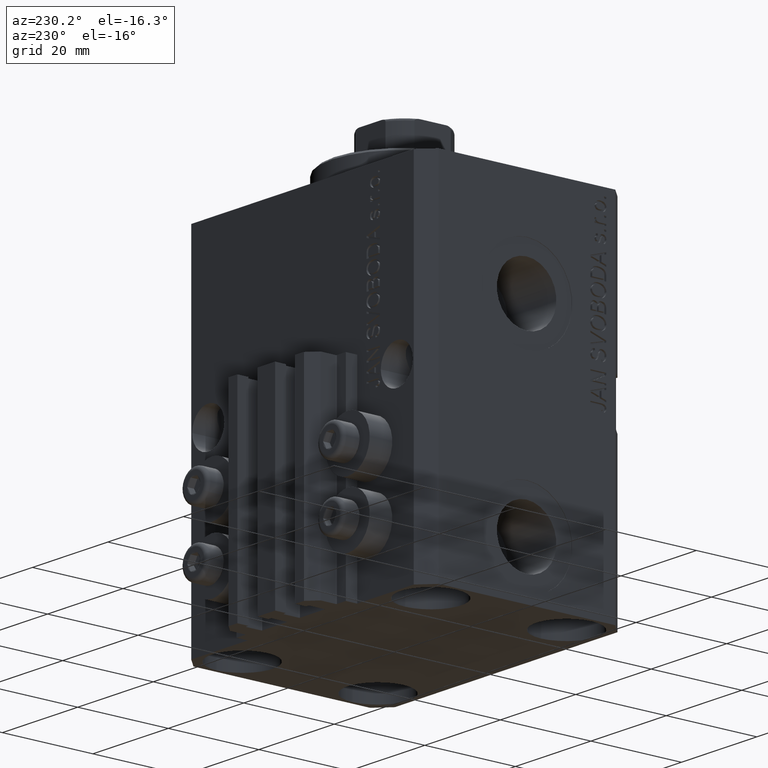
[diagram: clean part render]
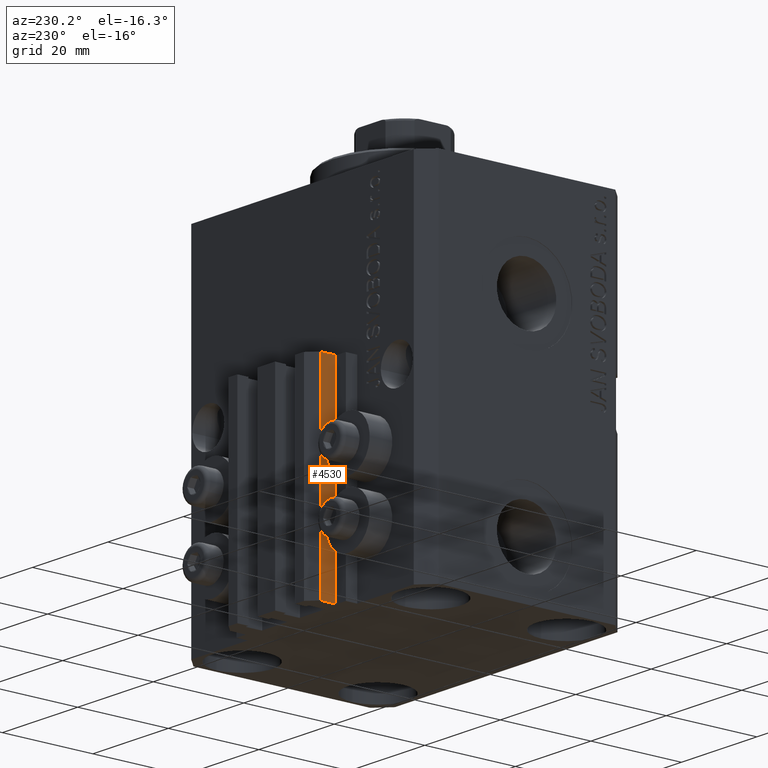
[diagram: same view with one face highlighted and labeled with its STEP entity id]
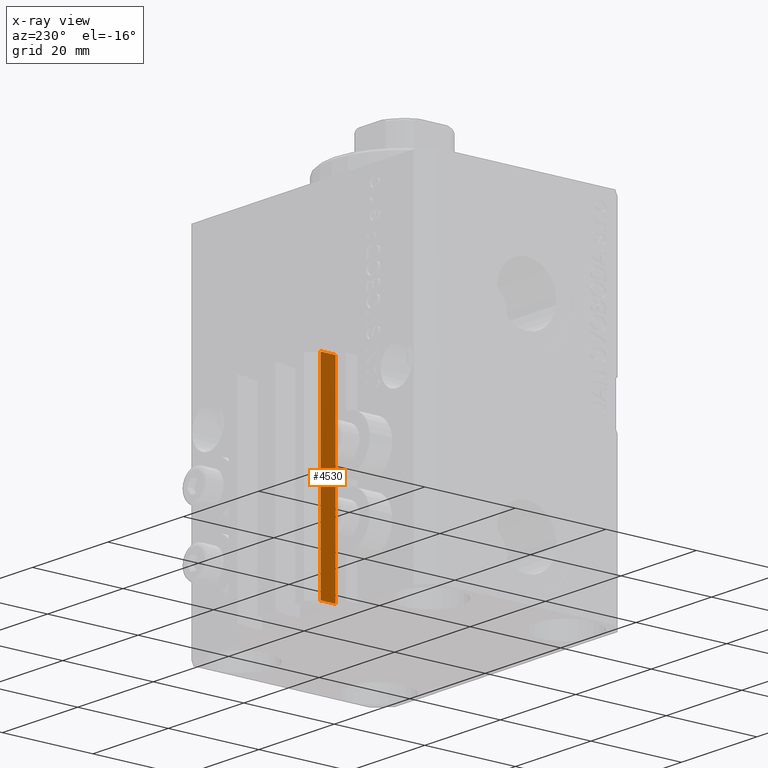
[diagram: x-ray of the same camera — body ghosted, the highlighted face saturated]
A machine part, auxiliary view. The second image highlights one B-rep face of the part: STEP entity #4530.
The next image is the same camera in x-ray: the body ghosted, the highlighted face saturated — about 0% of this face is hidden behind the body in this view.
In plain terms, the highlighted planar face has unit normal (-1, 0, 0).
Its self-contained STEP definition (entity closure, byte-faithful):
#224 = DIRECTION ( 'NONE',  ( -1.000000000000000000, 0.000000000000000000, 0.000000000000000000 ) ) ;
#2371 = EDGE_CURVE ( 'NONE', #31776, #36525, #20152, .T. ) ;
#4530 = ADVANCED_FACE ( 'NONE', ( #26276 ), #37371, .T. ) ;
#4841 = EDGE_LOOP ( 'NONE', ( #21035, #26075, #29330, #9497 ) ) ;
#4970 = CARTESIAN_POINT ( 'NONE',  ( -12.00000000000000000, 25.19999999999949125, -77.00000000000000000 ) ) ;
#7019 = EDGE_CURVE ( 'NONE', #36525, #39334, #39651, .T. ) ;
#9255 = VERTEX_POINT ( 'NONE', #23979 ) ;
#9294 = CARTESIAN_POINT ( 'NONE',  ( -12.00000000000000000, 28.49999999999948841, -77.00000000000000000 ) ) ;
#9497 = ORIENTED_EDGE ( 'NONE', *, *, #18545, .T. ) ;
#14835 = DIRECTION ( 'NONE',  ( 0.000000000000000000, -1.000000000000000000, 0.000000000000000000 ) ) ;
#15773 = CARTESIAN_POINT ( 'NONE',  ( -12.00000000000000000, 28.49999999999948841, -33.00000000000000000 ) ) ;
#16537 = DIRECTION ( 'NONE',  ( 0.000000000000000000, 0.000000000000000000, 1.000000000000000000 ) ) ;
#18308 = AXIS2_PLACEMENT_3D ( 'NONE', #19070, #224, #45316 ) ;
#18545 = EDGE_CURVE ( 'NONE', #9255, #39334, #45241, .T. ) ;
#19070 = CARTESIAN_POINT ( 'NONE',  ( -12.00000000000000000, 28.49999999999948841, -77.00000000000000000 ) ) ;
#20152 = LINE ( 'NONE', #34833, #40567 ) ;
#21035 = ORIENTED_EDGE ( 'NONE', *, *, #7019, .F. ) ;
#23531 = VECTOR ( 'NONE', #14835, 1000.000000000000000 ) ;
#23543 = DIRECTION ( 'NONE',  ( 0.000000000000000000, 0.000000000000000000, 1.000000000000000000 ) ) ;
#23979 = CARTESIAN_POINT ( 'NONE',  ( -12.00000000000000000, 25.19999999999949125, -77.00000000000000000 ) ) ;
#26075 = ORIENTED_EDGE ( 'NONE', *, *, #2371, .F. ) ;
#26276 = FACE_OUTER_BOUND ( 'NONE', #4841, .T. ) ;
#27388 = CARTESIAN_POINT ( 'NONE',  ( -12.00000000000000000, 28.49999999999948841, -77.00000000000000000 ) ) ;
#29330 = ORIENTED_EDGE ( 'NONE', *, *, #46425, .T. ) ;
#30215 = CARTESIAN_POINT ( 'NONE',  ( -12.00000000000000000, 25.19999999999949125, -33.00000000000000000 ) ) ;
#31776 = VERTEX_POINT ( 'NONE', #9294 ) ;
#31942 = DIRECTION ( 'NONE',  ( 0.000000000000000000, -1.000000000000000000, 0.000000000000000000 ) ) ;
#34833 = CARTESIAN_POINT ( 'NONE',  ( -12.00000000000000000, 28.49999999999948841, -77.00000000000000000 ) ) ;
#36525 = VERTEX_POINT ( 'NONE', #15773 ) ;
#37371 = PLANE ( 'NONE',  #18308 ) ;
#37637 = VECTOR ( 'NONE', #31942, 1000.000000000000000 ) ;
#39334 = VERTEX_POINT ( 'NONE', #30215 ) ;
#39651 = LINE ( 'NONE', #43036, #37637 ) ;
#40567 = VECTOR ( 'NONE', #16537, 1000.000000000000000 ) ;
#42535 = VECTOR ( 'NONE', #23543, 1000.000000000000000 ) ;
#43036 = CARTESIAN_POINT ( 'NONE',  ( -12.00000000000000000, 28.49999999999948841, -33.00000000000000000 ) ) ;
#45241 = LINE ( 'NONE', #4970, #42535 ) ;
#45316 = DIRECTION ( 'NONE',  ( 0.000000000000000000, 0.000000000000000000, 1.000000000000000000 ) ) ;
#45717 = LINE ( 'NONE', #27388, #23531 ) ;
#46425 = EDGE_CURVE ( 'NONE', #31776, #9255, #45717, .T. ) ;